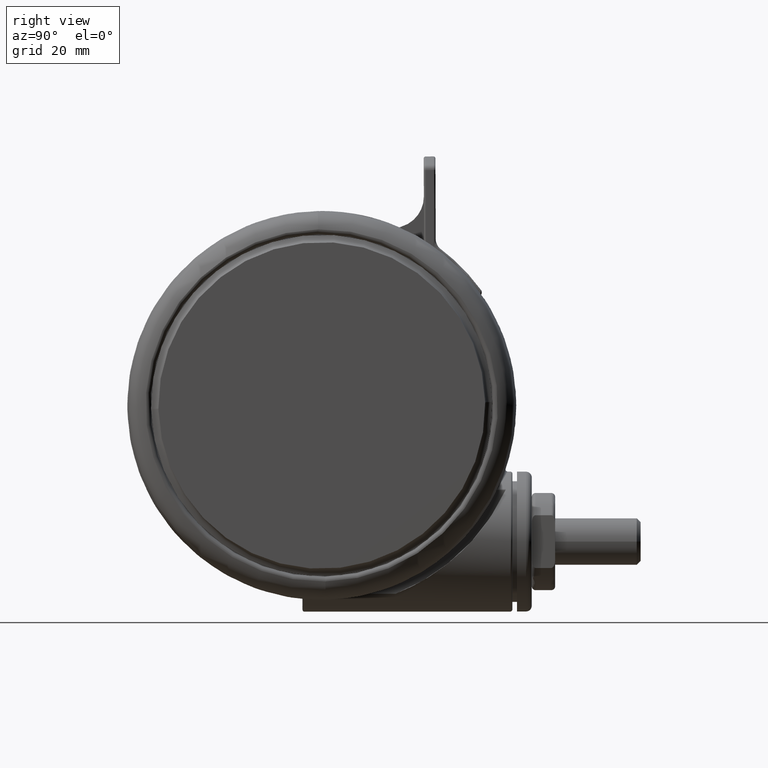
[diagram: clean part render]
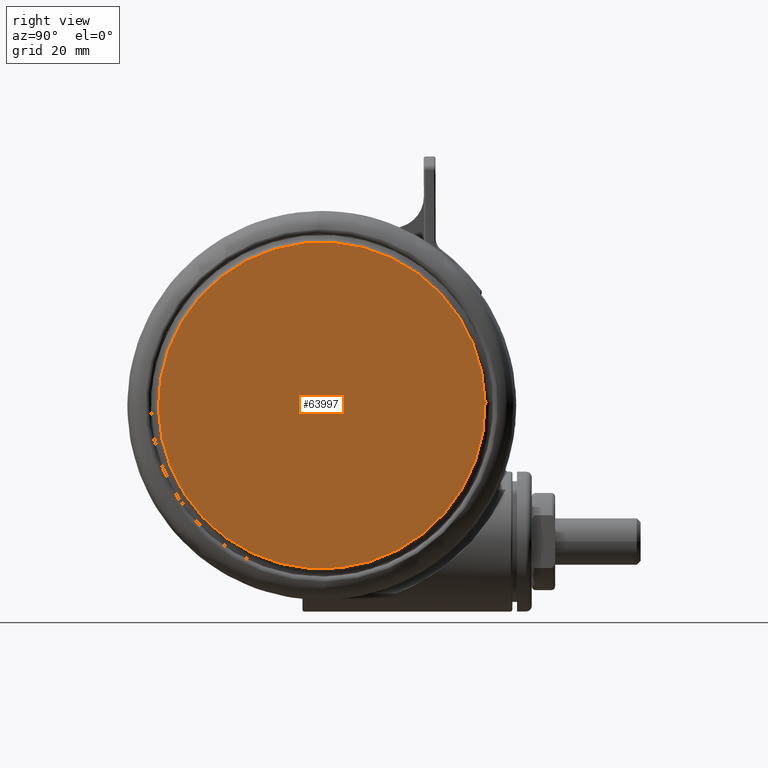
[diagram: same view with one face highlighted and labeled with its STEP entity id]
A machine part, right view. The second image highlights one B-rep face of the part: STEP entity #63997.
In plain terms, the highlighted planar face has unit normal (-1, 0, -0).
Its self-contained STEP definition (entity closure, byte-faithful):
#5393 = VERTEX_POINT ( 'NONE', #30864 ) ;
#5684 = DIRECTION ( 'NONE',  ( -1.000000000000000000, 0.0000000000000000000, 0.0000000000000000000 ) ) ;
#6651 = DIRECTION ( 'NONE',  ( 0.0000000000000000000, 0.0000000000000000000, 1.000000000000000000 ) ) ;
#8415 = CARTESIAN_POINT ( 'NONE',  ( 42.00000000000000000, 0.0000000000000000000, 0.0000000000000000000 ) ) ;
#10134 = AXIS2_PLACEMENT_3D ( 'NONE', #30878, #43507, #5684 ) ;
#14577 = AXIS2_PLACEMENT_3D ( 'NONE', #58733, #20935, #65082 ) ;
#19018 = EDGE_CURVE ( 'NONE', #23285, #5393, #63085, .T. ) ;
#20935 = DIRECTION ( 'NONE',  ( 0.0000000000000000000, 0.0000000000000000000, 1.000000000000000000 ) ) ;
#23285 = VERTEX_POINT ( 'NONE', #8415 ) ;
#30764 = ORIENTED_EDGE ( 'NONE', *, *, #76614, .T. ) ;
#30864 = CARTESIAN_POINT ( 'NONE',  ( -42.00000000000000000, 5.143516556418883300E-015, 0.0000000000000000000 ) ) ;
#30878 = CARTESIAN_POINT ( 'NONE',  ( 0.0000000000000000000, 0.0000000000000000000, 0.0000000000000000000 ) ) ;
#38617 = CIRCLE ( 'NONE', #14577, 42.00000000000000000 ) ;
#41120 = FACE_OUTER_BOUND ( 'NONE', #62669, .T. ) ;
#43507 = DIRECTION ( 'NONE',  ( 0.0000000000000000000, 0.0000000000000000000, -1.000000000000000000 ) ) ;
#44442 = CARTESIAN_POINT ( 'NONE',  ( 0.0000000000000000000, 0.0000000000000000000, 0.0000000000000000000 ) ) ;
#50776 = DIRECTION ( 'NONE',  ( 1.000000000000000000, 0.0000000000000000000, 0.0000000000000000000 ) ) ;
#58733 = CARTESIAN_POINT ( 'NONE',  ( 0.0000000000000000000, 0.0000000000000000000, 0.0000000000000000000 ) ) ;
#62364 = PLANE ( 'NONE',  #10134 ) ;
#62669 = EDGE_LOOP ( 'NONE', ( #73568, #30764 ) ) ;
#63085 = CIRCLE ( 'NONE', #75608, 42.00000000000000000 ) ;
#63997 = ADVANCED_FACE ( 'NONE', ( #41120 ), #62364, .F. ) ;
#65082 = DIRECTION ( 'NONE',  ( 1.000000000000000000, 0.0000000000000000000, 0.0000000000000000000 ) ) ;
#73568 = ORIENTED_EDGE ( 'NONE', *, *, #19018, .T. ) ;
#75608 = AXIS2_PLACEMENT_3D ( 'NONE', #44442, #6651, #50776 ) ;
#76614 = EDGE_CURVE ( 'NONE', #5393, #23285, #38617, .T. ) ;